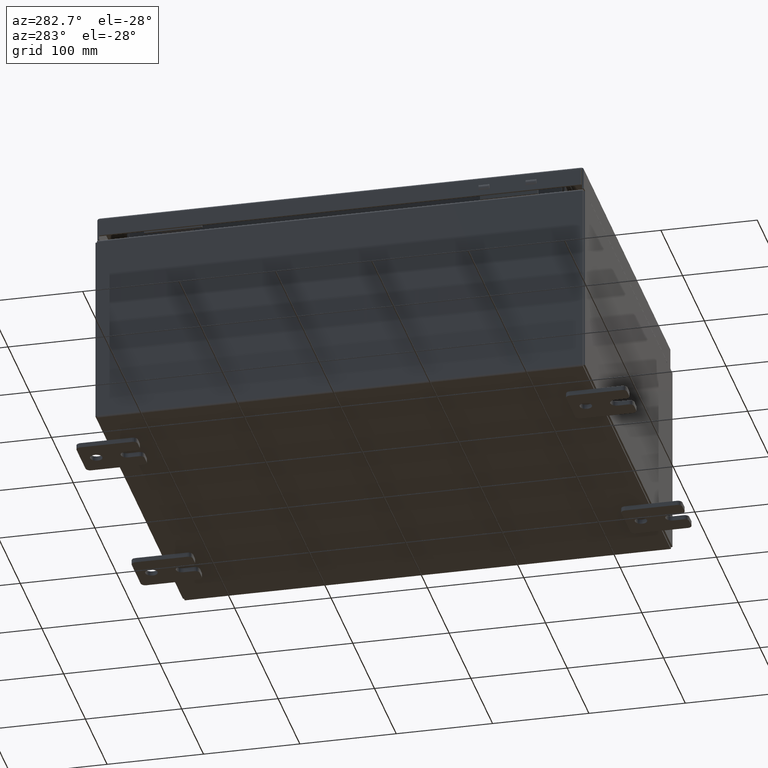
[diagram: clean part render]
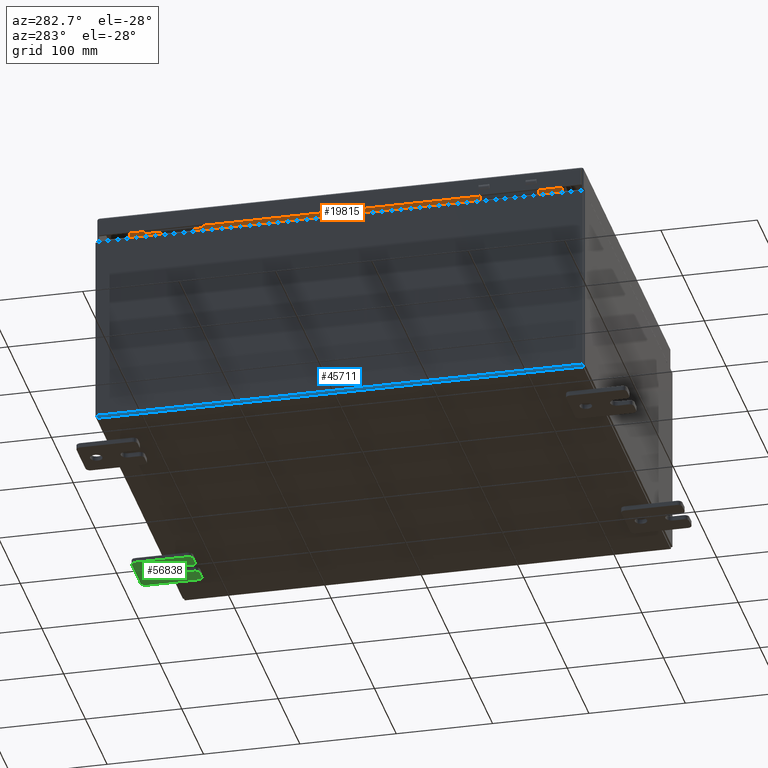
[diagram: same view with three faces highlighted in distinct colors, each labeled with its STEP entity id]
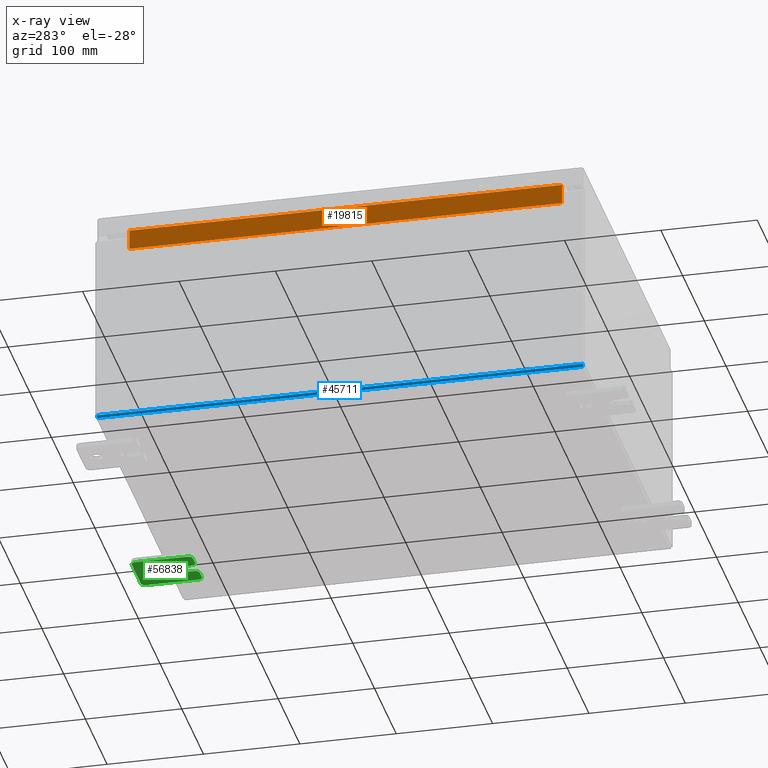
[diagram: x-ray of the same camera — body ghosted, the three highlighted faces saturated]
A machine part, auxiliary view with three faces highlighted in distinct colors.
The next image is the same camera in x-ray (body ghosted, the three faces saturated) — at least one of them is partly hidden behind the body in this view.
Their STEP definitions:

[orange] entity #19815 — the highlighted planar face has unit normal (-1, 0, -0).
#1481 = VERTEX_POINT ( 'NONE', #56870 ) ;
#2803 = LINE ( 'NONE', #62335, #17327 ) ;
#4866 = AXIS2_PLACEMENT_3D ( 'NONE', #17353, #56222, #27119 ) ;
#5267 = ORIENTED_EDGE ( 'NONE', *, *, #47934, .F. ) ;
#5410 = FACE_OUTER_BOUND ( 'NONE', #28951, .T. ) ;
#12126 = CARTESIAN_POINT ( 'NONE',  ( -6.949700000000024900, 8.843749999999996400, 7.938300000000007900 ) ) ;
#12448 = VECTOR ( 'NONE', #48192, 39.37007874015748100 ) ;
#12614 = EDGE_CURVE ( 'NONE', #61899, #43246, #24915, .T. ) ;
#17327 = VECTOR ( 'NONE', #33176, 39.37007874015748100 ) ;
#17353 = CARTESIAN_POINT ( 'NONE',  ( -6.949699999999996400, 1.521147545729781700E-030, -2.462188349927833900E-014 ) ) ;
#19111 = CARTESIAN_POINT ( 'NONE',  ( -6.949700000000026600, 8.843750000000000000, 8.762900000000005500 ) ) ;
#19815 = ADVANCED_FACE ( 'NONE', ( #5410 ), #51346, .T. ) ;
#22732 = VECTOR ( 'NONE', #51553, 39.37007874015748100 ) ;
#23393 = EDGE_CURVE ( 'NONE', #1481, #61899, #59995, .T. ) ;
#24012 = CARTESIAN_POINT ( 'NONE',  ( -6.949700000000027500, 8.843749999999998200, 8.850600000000007100 ) ) ;
#24915 = LINE ( 'NONE', #24012, #36307 ) ;
#25606 = ORIENTED_EDGE ( 'NONE', *, *, #12614, .F. ) ;
#27119 = DIRECTION ( 'NONE',  ( -3.542869979895298400E-015, 0.0000000000000000000, 1.000000000000000000 ) ) ;
#28951 = EDGE_LOOP ( 'NONE', ( #5267, #36681, #25606, #46439 ) ) ;
#29296 = EDGE_CURVE ( 'NONE', #43246, #53685, #51261, .T. ) ;
#30116 = CARTESIAN_POINT ( 'NONE',  ( -6.949700000000026600, -8.843749999999996400, 8.762900000000005500 ) ) ;
#33176 = DIRECTION ( 'NONE',  ( 3.542869979895294000E-015, -0.0000000000000000000, -1.000000000000000000 ) ) ;
#34714 = CARTESIAN_POINT ( 'NONE',  ( -6.949700000000027500, 8.843749999999998200, 8.762900000000005500 ) ) ;
#36307 = VECTOR ( 'NONE', #42030, 39.37007874015748100 ) ;
#36681 = ORIENTED_EDGE ( 'NONE', *, *, #29296, .F. ) ;
#41975 = CARTESIAN_POINT ( 'NONE',  ( -6.949700000000024900, -8.843749999999996400, 7.938300000000006100 ) ) ;
#42030 = DIRECTION ( 'NONE',  ( -3.542869979895298400E-015, -0.0000000000000000000, 1.000000000000000000 ) ) ;
#43246 = VERTEX_POINT ( 'NONE', #34714 ) ;
#46439 = ORIENTED_EDGE ( 'NONE', *, *, #23393, .F. ) ;
#47934 = EDGE_CURVE ( 'NONE', #53685, #1481, #2803, .T. ) ;
#48192 = DIRECTION ( 'NONE',  ( -0.0000000000000000000, -1.000000000000000000, -0.0000000000000000000 ) ) ;
#51261 = LINE ( 'NONE', #19111, #12448 ) ;
#51346 = PLANE ( 'NONE',  #4866 ) ;
#51553 = DIRECTION ( 'NONE',  ( -6.178030798392683000E-017, 1.000000000000000000, 1.235606159678536600E-016 ) ) ;
#53685 = VERTEX_POINT ( 'NONE', #30116 ) ;
#56222 = DIRECTION ( 'NONE',  ( -1.000000000000000000, 2.188795985049401400E-031, -3.542869979895298400E-015 ) ) ;
#56870 = CARTESIAN_POINT ( 'NONE',  ( -6.949700000000024900, -8.843749999999996400, 7.938300000000007900 ) ) ;
#59995 = LINE ( 'NONE', #41975, #22732 ) ;
#61899 = VERTEX_POINT ( 'NONE', #12126 ) ;
#62335 = CARTESIAN_POINT ( 'NONE',  ( -6.949700000000024900, -8.843749999999996400, 7.925300000000006200 ) ) ;

[blue] entity #45711 — the highlighted cylindrical surface (edge-blend (fillet) strip) has radius 2.2276 mm, axis along (0, -1, 0).
#584 = DIRECTION ( 'NONE',  ( 0.0000000000000000000, 0.0000000000000000000, -1.000000000000000000 ) ) ;
#2662 = ORIENTED_EDGE ( 'NONE', *, *, #28701, .F. ) ;
#3339 = CIRCLE ( 'NONE', #42216, 0.08770000000000009700 ) ;
#3489 = ORIENTED_EDGE ( 'NONE', *, *, #18245, .F. ) ;
#8233 = VERTEX_POINT ( 'NONE', #8370 ) ;
#8370 = CARTESIAN_POINT ( 'NONE',  ( -7.912299999999997400, 9.925299999999998200, -0.07470000000000000300 ) ) ;
#10215 = VERTEX_POINT ( 'NONE', #28445 ) ;
#10831 = CIRCLE ( 'NONE', #56551, 0.08770000000000009700 ) ;
#17922 = VECTOR ( 'NONE', #21607, 39.37007874015748100 ) ;
#18245 = EDGE_CURVE ( 'NONE', #8233, #10215, #10831, .T. ) ;
#19579 = DIRECTION ( 'NONE',  ( 0.0000000000000000000, -1.000000000000000000, 0.0000000000000000000 ) ) ;
#21452 = ORIENTED_EDGE ( 'NONE', *, *, #44364, .F. ) ;
#21607 = DIRECTION ( 'NONE',  ( -0.0000000000000000000, 1.000000000000000000, -0.0000000000000000000 ) ) ;
#21636 = FACE_OUTER_BOUND ( 'NONE', #36435, .T. ) ;
#27380 = CARTESIAN_POINT ( 'NONE',  ( -7.912299999999997400, -9.925300000000001800, 0.01300000000000015200 ) ) ;
#27533 = EDGE_CURVE ( 'NONE', #51158, #10215, #55146, .T. ) ;
#28445 = CARTESIAN_POINT ( 'NONE',  ( -7.999999999999997300, 9.925299999999998200, 0.01299999999999984800 ) ) ;
#28701 = EDGE_CURVE ( 'NONE', #51158, #46534, #3339, .T. ) ;
#29788 = DIRECTION ( 'NONE',  ( -0.0000000000000000000, 1.000000000000000000, -0.0000000000000000000 ) ) ;
#31143 = CARTESIAN_POINT ( 'NONE',  ( -7.999999999999997300, -9.925300000000000000, 0.01299999999999984700 ) ) ;
#32495 = DIRECTION ( 'NONE',  ( 0.0000000000000000000, -1.000000000000000000, 0.0000000000000000000 ) ) ;
#36435 = EDGE_LOOP ( 'NONE', ( #21452, #2662, #54663, #3489 ) ) ;
#37195 = DIRECTION ( 'NONE',  ( -1.000000000000000000, 0.0000000000000000000, -3.455694262224952200E-015 ) ) ;
#42105 = CARTESIAN_POINT ( 'NONE',  ( -7.912299999999997400, -9.925300000000000000, -0.07469999999999994700 ) ) ;
#42216 = AXIS2_PLACEMENT_3D ( 'NONE', #48663, #19579, #53550 ) ;
#44364 = EDGE_CURVE ( 'NONE', #46534, #8233, #61291, .T. ) ;
#45711 = ADVANCED_FACE ( 'NONE', ( #21636 ), #45965, .T. ) ;
#45965 = CYLINDRICAL_SURFACE ( 'NONE', #61645, 0.08770000000000026400 ) ;
#46534 = VERTEX_POINT ( 'NONE', #42105 ) ;
#47221 = CARTESIAN_POINT ( 'NONE',  ( -7.912299999999997400, -9.925300000000001800, -0.07469999999999994700 ) ) ;
#48342 = VECTOR ( 'NONE', #52095, 39.37007874015748100 ) ;
#48663 = CARTESIAN_POINT ( 'NONE',  ( -7.912299999999997400, -9.925300000000000000, 0.01300000000000015200 ) ) ;
#51158 = VERTEX_POINT ( 'NONE', #31143 ) ;
#52095 = DIRECTION ( 'NONE',  ( -0.0000000000000000000, 1.000000000000000000, -0.0000000000000000000 ) ) ;
#53550 = DIRECTION ( 'NONE',  ( 0.0000000000000000000, 0.0000000000000000000, -1.000000000000000000 ) ) ;
#54663 = ORIENTED_EDGE ( 'NONE', *, *, #27533, .T. ) ;
#55146 = LINE ( 'NONE', #60482, #17922 ) ;
#56551 = AXIS2_PLACEMENT_3D ( 'NONE', #58887, #29788, #584 ) ;
#58887 = CARTESIAN_POINT ( 'NONE',  ( -7.912299999999997400, 9.925299999999998200, 0.01300000000000015200 ) ) ;
#60482 = CARTESIAN_POINT ( 'NONE',  ( -7.999999999999997300, 9.925299999999998200, 0.01299999999999984700 ) ) ;
#61291 = LINE ( 'NONE', #47221, #48342 ) ;
#61645 = AXIS2_PLACEMENT_3D ( 'NONE', #27380, #32495, #37195 ) ;

[green] entity #56838 — the highlighted planar face has unit normal (0, 0, 1).
#334 = PLANE ( 'NONE',  #41250 ) ;
#449 = AXIS2_PLACEMENT_3D ( 'NONE', #5735, #39789, #10623 ) ;
#497 = ORIENTED_EDGE ( 'NONE', *, *, #12252, .T. ) ;
#1654 = CARTESIAN_POINT ( 'NONE',  ( -0.1880000000000010000, 0.6249999999999992200, -7.703811342100550500E-020 ) ) ;
#2545 = ORIENTED_EDGE ( 'NONE', *, *, #44811, .F. ) ;
#3404 = ORIENTED_EDGE ( 'NONE', *, *, #29401, .T. ) ;
#5243 = DIRECTION ( 'NONE',  ( -0.0000000000000000000, 0.0000000000000000000, -1.000000000000000000 ) ) ;
#5735 = CARTESIAN_POINT ( 'NONE',  ( -0.1879999999999997800, -1.060000000000003400, -0.4400000000000005000 ) ) ;
#5953 = DIRECTION ( 'NONE',  ( 0.0000000000000000000, -1.639108796198553600E-015, -1.000000000000000000 ) ) ;
#6540 = DIRECTION ( 'NONE',  ( 0.0000000000000000000, 1.639108796198553600E-015, 1.000000000000000000 ) ) ;
#6564 = DIRECTION ( 'NONE',  ( 0.0000000000000000000, 0.0000000000000000000, -1.000000000000000000 ) ) ;
#7730 = VERTEX_POINT ( 'NONE', #10740 ) ;
#7731 = CARTESIAN_POINT ( 'NONE',  ( -0.1879999999999997800, -1.060000000000001200, 0.9999999999999988900 ) ) ;
#8083 = ORIENTED_EDGE ( 'NONE', *, *, #48824, .T. ) ;
#8202 = EDGE_CURVE ( 'NONE', #23413, #7730, #39543, .T. ) ;
#8552 = DIRECTION ( 'NONE',  ( 0.0000000000000000000, 1.000000000000000000, -1.639108796198558100E-015 ) ) ;
#8894 = ORIENTED_EDGE ( 'NONE', *, *, #51104, .F. ) ;
#9383 = EDGE_CURVE ( 'NONE', #46125, #51472, #44789, .T. ) ;
#9902 = DIRECTION ( 'NONE',  ( -1.000000000000000000, -0.0000000000000000000, 0.0000000000000000000 ) ) ;
#10238 = LINE ( 'NONE', #61004, #21692 ) ;
#10623 = DIRECTION ( 'NONE',  ( 0.0000000000000000000, 0.0000000000000000000, -1.000000000000000000 ) ) ;
#10740 = CARTESIAN_POINT ( 'NONE',  ( -0.1879999999999997800, -1.250000000000003100, 0.4400000000000020000 ) ) ;
#11634 = AXIS2_PLACEMENT_3D ( 'NONE', #21223, #55192, #26075 ) ;
#12252 = EDGE_CURVE ( 'NONE', #58937, #7730, #21136, .T. ) ;
#12833 = CARTESIAN_POINT ( 'NONE',  ( -0.1879999999999997800, -1.250000000000002400, 0.8099999999999980500 ) ) ;
#13082 = VECTOR ( 'NONE', #30241, 39.37007874015748100 ) ;
#13201 = VERTEX_POINT ( 'NONE', #33441 ) ;
#13242 = CARTESIAN_POINT ( 'NONE',  ( -0.1880000000000010000, 0.6249999999999992200, -7.703811342100550500E-020 ) ) ;
#13650 = VECTOR ( 'NONE', #22873, 39.37007874015748100 ) ;
#14700 = CARTESIAN_POINT ( 'NONE',  ( -0.1879999999999997800, 1.059999999999996300, 0.8099999999999938400 ) ) ;
#14799 = ORIENTED_EDGE ( 'NONE', *, *, #47609, .T. ) ;
#15202 = VERTEX_POINT ( 'NONE', #23705 ) ;
#15215 = CARTESIAN_POINT ( 'NONE',  ( -0.1879999999999997800, 1.249999999999994700, -0.8100000000000092700 ) ) ;
#15601 = CIRCLE ( 'NONE', #25616, 0.2499999999999999200 ) ;
#15642 = AXIS2_PLACEMENT_3D ( 'NONE', #54617, #25495, #59509 ) ;
#16105 = FACE_BOUND ( 'NONE', #18056, .T. ) ;
#16442 = CARTESIAN_POINT ( 'NONE',  ( -0.1880000000000001900, -0.6249999999999992200, 6.829619984160658000E-017 ) ) ;
#16997 = AXIS2_PLACEMENT_3D ( 'NONE', #39072, #9902, #43956 ) ;
#17421 = DIRECTION ( 'NONE',  ( 6.556435184794182400E-016, 1.000000000000000000, 0.0000000000000000000 ) ) ;
#17724 = EDGE_LOOP ( 'NONE', ( #25667, #44703, #25215, #8083, #62129, #3404, #40311, #24674, #53995, #19888, #20007, #8894, #2545, #497 ) ) ;
#18056 = EDGE_LOOP ( 'NONE', ( #61473, #14799 ) ) ;
#18180 = DIRECTION ( 'NONE',  ( 0.0000000000000000000, 0.0000000000000000000, -1.000000000000000000 ) ) ;
#18356 = CARTESIAN_POINT ( 'NONE',  ( -0.1880000000000004700, -1.060000000000002100, 0.2500000000000005000 ) ) ;
#18822 = CIRCLE ( 'NONE', #30854, 0.1900000000000011100 ) ;
#19034 = LINE ( 'NONE', #59952, #53219 ) ;
#19645 = DIRECTION ( 'NONE',  ( 0.0000000000000000000, 0.0000000000000000000, -1.000000000000000000 ) ) ;
#19749 = AXIS2_PLACEMENT_3D ( 'NONE', #1654, #35754, #6564 ) ;
#19773 = CARTESIAN_POINT ( 'NONE',  ( -0.1879999999999997800, 0.0000000000000000000, 0.0000000000000000000 ) ) ;
#19888 = ORIENTED_EDGE ( 'NONE', *, *, #9383, .T. ) ;
#20007 = ORIENTED_EDGE ( 'NONE', *, *, #49787, .F. ) ;
#20143 = VERTEX_POINT ( 'NONE', #24975 ) ;
#20421 = VECTOR ( 'NONE', #8552, 39.37007874015748100 ) ;
#20491 = CARTESIAN_POINT ( 'NONE',  ( -0.1879999999999997800, -1.250000000000002200, 0.9999999999999992200 ) ) ;
#20831 = VERTEX_POINT ( 'NONE', #24724 ) ;
#21136 = CIRCLE ( 'NONE', #15642, 0.1900000000000011400 ) ;
#21223 = CARTESIAN_POINT ( 'NONE',  ( -0.1879999999999997800, -1.060000000000004100, -0.8100000000000050500 ) ) ;
#21365 = DIRECTION ( 'NONE',  ( -6.829619984160660000E-016, -1.000000000000000000, 0.0000000000000000000 ) ) ;
#21692 = VECTOR ( 'NONE', #17421, 39.37007874015748100 ) ;
#21784 = LINE ( 'NONE', #60328, #24848 ) ;
#22873 = DIRECTION ( 'NONE',  ( 0.0000000000000000000, -1.639108796198553600E-015, -1.000000000000000000 ) ) ;
#23413 = VERTEX_POINT ( 'NONE', #12833 ) ;
#23705 = CARTESIAN_POINT ( 'NONE',  ( -0.1879999999999997800, -1.060000000000004500, -1.000000000000006400 ) ) ;
#24478 = CARTESIAN_POINT ( 'NONE',  ( -0.1879999999999997800, 1.059999999999996500, 0.9999999999999953400 ) ) ;
#24674 = ORIENTED_EDGE ( 'NONE', *, *, #28881, .T. ) ;
#24724 = CARTESIAN_POINT ( 'NONE',  ( -0.1879999999999997800, 1.249999999999997300, 0.8099999999999935000 ) ) ;
#24848 = VECTOR ( 'NONE', #26295, 39.37007874015748100 ) ;
#24975 = CARTESIAN_POINT ( 'NONE',  ( -0.1880000000000001900, -0.6249999999999992200, 0.2500000000000005000 ) ) ;
#25215 = ORIENTED_EDGE ( 'NONE', *, *, #54489, .F. ) ;
#25403 = DIRECTION ( 'NONE',  ( -1.000000000000000000, -0.0000000000000000000, 0.0000000000000000000 ) ) ;
#25495 = DIRECTION ( 'NONE',  ( -1.000000000000000000, -0.0000000000000000000, 0.0000000000000000000 ) ) ;
#25616 = AXIS2_PLACEMENT_3D ( 'NONE', #16442, #50436, #21365 ) ;
#25667 = ORIENTED_EDGE ( 'NONE', *, *, #8202, .F. ) ;
#26075 = DIRECTION ( 'NONE',  ( 0.0000000000000000000, 0.0000000000000000000, -1.000000000000000000 ) ) ;
#26295 = DIRECTION ( 'NONE',  ( -6.556435184794182400E-016, -1.000000000000000000, -1.639108796198545600E-016 ) ) ;
#27741 = CARTESIAN_POINT ( 'NONE',  ( -0.1879999999999997800, -1.250000000000002200, 0.9999999999999992200 ) ) ;
#28881 = EDGE_CURVE ( 'NONE', #15202, #55694, #50515, .T. ) ;
#29401 = EDGE_CURVE ( 'NONE', #61176, #57030, #59636, .T. ) ;
#30241 = DIRECTION ( 'NONE',  ( 0.0000000000000000000, -1.000000000000000000, 1.639108796198558100E-015 ) ) ;
#30854 = AXIS2_PLACEMENT_3D ( 'NONE', #14700, #48721, #19645 ) ;
#33167 = VERTEX_POINT ( 'NONE', #24478 ) ;
#33441 = CARTESIAN_POINT ( 'NONE',  ( -0.1880000000000010000, 0.6249999999999992200, -0.2499999999999999200 ) ) ;
#34416 = DIRECTION ( 'NONE',  ( 1.000000000000000000, 0.0000000000000000000, -0.0000000000000000000 ) ) ;
#35754 = DIRECTION ( 'NONE',  ( 1.000000000000000000, -0.0000000000000000000, -5.163192708025532000E-017 ) ) ;
#35852 = EDGE_CURVE ( 'NONE', #13201, #52650, #52661, .T. ) ;
#36093 = CARTESIAN_POINT ( 'NONE',  ( -0.1880000000000010000, 0.6249999999999992200, 0.2499999999999999200 ) ) ;
#37738 = CARTESIAN_POINT ( 'NONE',  ( -0.1879999999999997800, -1.250000000000005600, -1.000000000000006200 ) ) ;
#38388 = CIRCLE ( 'NONE', #19749, 0.2499999999999999200 ) ;
#39072 = CARTESIAN_POINT ( 'NONE',  ( -0.1879999999999997800, 1.059999999999993600, -0.8100000000000089400 ) ) ;
#39543 = LINE ( 'NONE', #27741, #13650 ) ;
#39789 = DIRECTION ( 'NONE',  ( -1.000000000000000000, -0.0000000000000000000, 0.0000000000000000000 ) ) ;
#40079 = CARTESIAN_POINT ( 'NONE',  ( -0.1879999999999997800, -1.250000000000004700, -0.4400000000000002200 ) ) ;
#40311 = ORIENTED_EDGE ( 'NONE', *, *, #40967, .F. ) ;
#40967 = EDGE_CURVE ( 'NONE', #15202, #57030, #59199, .T. ) ;
#41250 = AXIS2_PLACEMENT_3D ( 'NONE', #19773, #34416, #5243 ) ;
#42900 = AXIS2_PLACEMENT_3D ( 'NONE', #13242, #47289, #18180 ) ;
#43519 = CIRCLE ( 'NONE', #57067, 0.1900000000000011100 ) ;
#43532 = FACE_OUTER_BOUND ( 'NONE', #17724, .T. ) ;
#43956 = DIRECTION ( 'NONE',  ( 0.0000000000000000000, 0.0000000000000000000, -1.000000000000000000 ) ) ;
#44703 = ORIENTED_EDGE ( 'NONE', *, *, #55232, .T. ) ;
#44789 = CIRCLE ( 'NONE', #449, 0.1900000000000011100 ) ;
#44811 = EDGE_CURVE ( 'NONE', #58937, #20143, #10238, .T. ) ;
#46125 = VERTEX_POINT ( 'NONE', #40079 ) ;
#46839 = CARTESIAN_POINT ( 'NONE',  ( -0.1880000000000001900, -0.6249999999999992200, -0.2499999999999998600 ) ) ;
#47289 = DIRECTION ( 'NONE',  ( 1.000000000000000000, -0.0000000000000000000, -5.163192708025532000E-017 ) ) ;
#47609 = EDGE_CURVE ( 'NONE', #52650, #13201, #38388, .T. ) ;
#48721 = DIRECTION ( 'NONE',  ( -1.000000000000000000, -0.0000000000000000000, 0.0000000000000000000 ) ) ;
#48744 = CARTESIAN_POINT ( 'NONE',  ( -0.1880000000000004700, -1.060000000000003400, -0.2499999999999994400 ) ) ;
#48824 = EDGE_CURVE ( 'NONE', #33167, #20831, #18822, .T. ) ;
#49787 = EDGE_CURVE ( 'NONE', #60060, #51472, #21784, .T. ) ;
#50358 = LINE ( 'NONE', #59355, #13082 ) ;
#50436 = DIRECTION ( 'NONE',  ( -1.000000000000000000, 6.523827964459549700E-016, 5.163192708025532000E-017 ) ) ;
#50515 = CIRCLE ( 'NONE', #11634, 0.1900000000000011100 ) ;
#51104 = EDGE_CURVE ( 'NONE', #20143, #60060, #15601, .T. ) ;
#51472 = VERTEX_POINT ( 'NONE', #48744 ) ;
#51621 = EDGE_CURVE ( 'NONE', #46125, #55694, #53624, .T. ) ;
#52094 = VECTOR ( 'NONE', #5953, 39.37007874015748100 ) ;
#52650 = VERTEX_POINT ( 'NONE', #36093 ) ;
#52661 = CIRCLE ( 'NONE', #42900, 0.2499999999999999200 ) ;
#53219 = VECTOR ( 'NONE', #6540, 39.37007874015748100 ) ;
#53624 = LINE ( 'NONE', #20491, #52094 ) ;
#53995 = ORIENTED_EDGE ( 'NONE', *, *, #51621, .F. ) ;
#54489 = EDGE_CURVE ( 'NONE', #33167, #60772, #50358, .T. ) ;
#54510 = CARTESIAN_POINT ( 'NONE',  ( -0.1879999999999997800, -1.060000000000001600, 0.8099999999999978300 ) ) ;
#54617 = CARTESIAN_POINT ( 'NONE',  ( -0.1879999999999997800, -1.060000000000002100, 0.4400000000000016700 ) ) ;
#54845 = CARTESIAN_POINT ( 'NONE',  ( -0.1879999999999997800, 1.059999999999993400, -1.000000000000010000 ) ) ;
#55192 = DIRECTION ( 'NONE',  ( -1.000000000000000000, -0.0000000000000000000, 0.0000000000000000000 ) ) ;
#55232 = EDGE_CURVE ( 'NONE', #23413, #60772, #43519, .T. ) ;
#55694 = VERTEX_POINT ( 'NONE', #59731 ) ;
#56838 = ADVANCED_FACE ( 'NONE', ( #16105, #43532 ), #334, .F. ) ;
#57030 = VERTEX_POINT ( 'NONE', #54845 ) ;
#57067 = AXIS2_PLACEMENT_3D ( 'NONE', #54510, #25403, #59410 ) ;
#58937 = VERTEX_POINT ( 'NONE', #18356 ) ;
#59199 = LINE ( 'NONE', #37738, #20421 ) ;
#59355 = CARTESIAN_POINT ( 'NONE',  ( -0.1879999999999997800, 1.249999999999997600, 0.9999999999999951200 ) ) ;
#59410 = DIRECTION ( 'NONE',  ( 0.0000000000000000000, 7.189073667537492800E-016, -1.000000000000000000 ) ) ;
#59509 = DIRECTION ( 'NONE',  ( 0.0000000000000000000, 0.0000000000000000000, -1.000000000000000000 ) ) ;
#59636 = CIRCLE ( 'NONE', #16997, 0.1900000000000011100 ) ;
#59731 = CARTESIAN_POINT ( 'NONE',  ( -0.1879999999999997800, -1.250000000000005300, -0.8100000000000047200 ) ) ;
#59952 = CARTESIAN_POINT ( 'NONE',  ( -0.1879999999999997800, 1.249999999999994200, -1.000000000000010400 ) ) ;
#60060 = VERTEX_POINT ( 'NONE', #46839 ) ;
#60328 = CARTESIAN_POINT ( 'NONE',  ( -0.1880000000000001900, -0.6249999999999992200, -0.2499999999999993900 ) ) ;
#60772 = VERTEX_POINT ( 'NONE', #7731 ) ;
#61004 = CARTESIAN_POINT ( 'NONE',  ( -0.1880000000000005800, -1.250000000000003800, 0.2500000000000005000 ) ) ;
#61176 = VERTEX_POINT ( 'NONE', #15215 ) ;
#61473 = ORIENTED_EDGE ( 'NONE', *, *, #35852, .T. ) ;
#62129 = ORIENTED_EDGE ( 'NONE', *, *, #62443, .F. ) ;
#62443 = EDGE_CURVE ( 'NONE', #61176, #20831, #19034, .T. ) ;